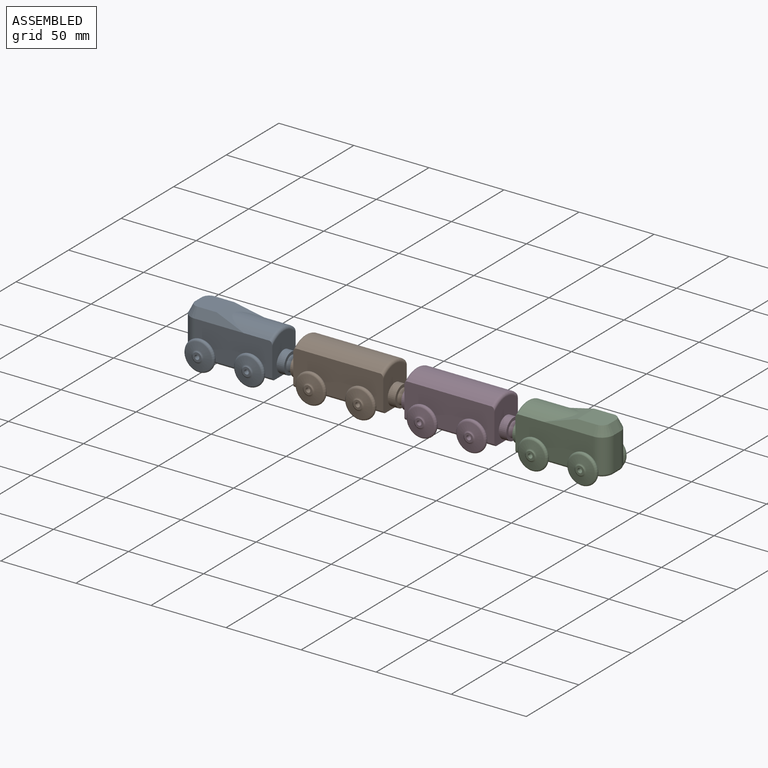
[diagram: assembled view]
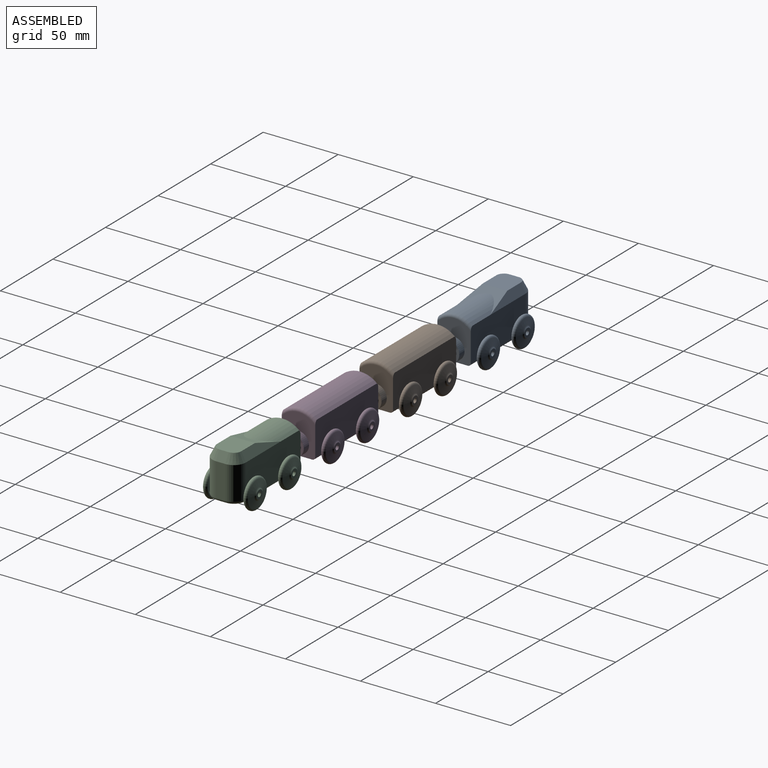
[diagram: assembled view, second angle]
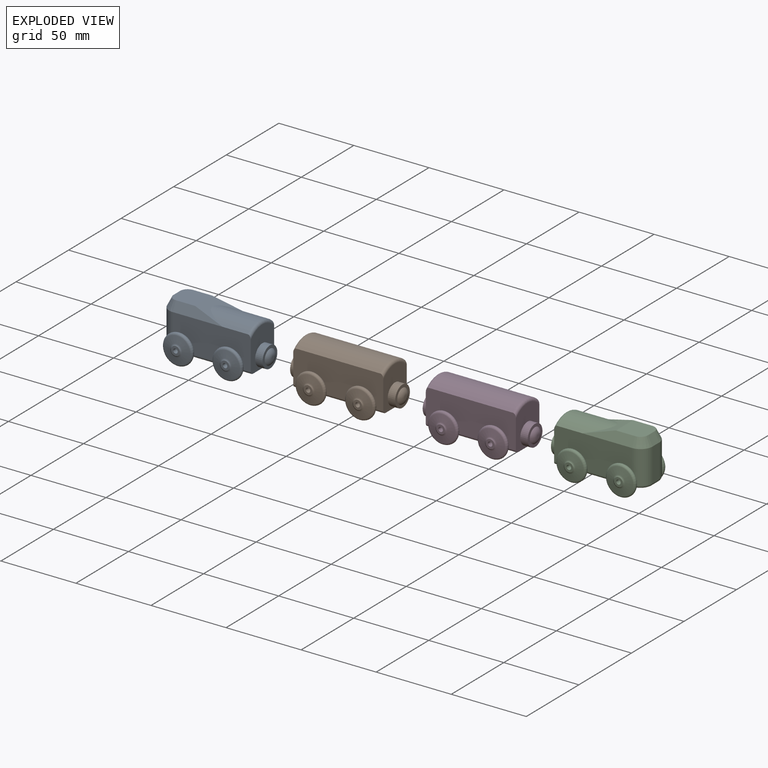
[diagram: exploded view]
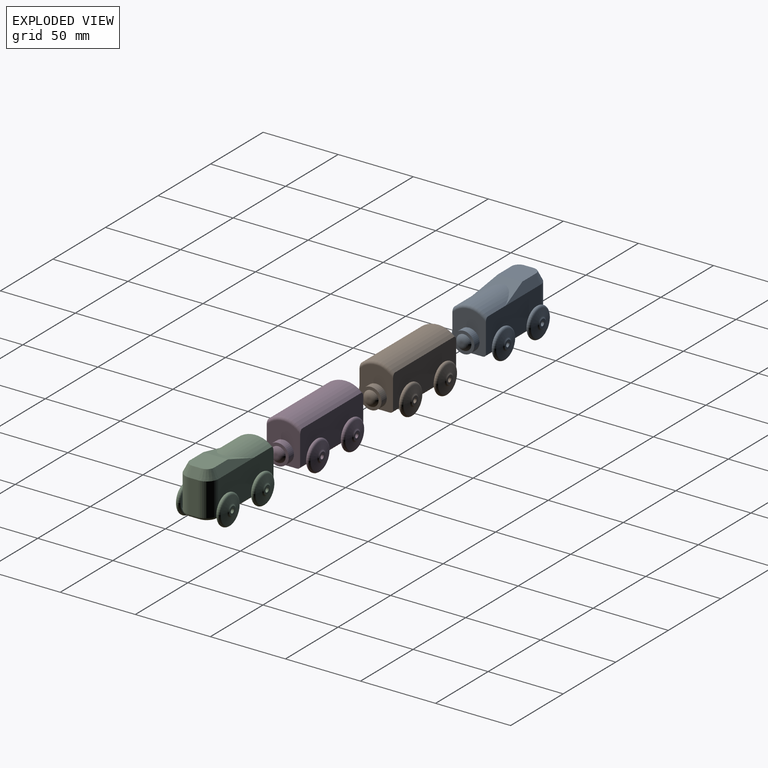
[diagram: exploded view, second angle]
ASSEMBLY  parts=4 mates=3
PART A: 69 faces, bbox 67.7x35.4x36.8 mm
  f0: plane 0.11x0.1mm, normal (1,0,0), area 0mm2, adj f1,f14,f18
  f1: cylinder r=16.75mm len=31.21mm, axis (-1,0,0), area 641.2mm2, adj f0,f3,f4,f9,f18,f68
  f2: plane 58x18.84mm, normal (0,0,-1), area 1048.3mm2, adj f5,f55,f56,f57,f58,f59,f60,f61
  f3: plane 52x22mm, normal (0,1,0), area 1092.5mm2, adj f1,f5,f11,f14,f42,f50,f63,f65
  f4: plane 52x22mm, normal (0,-1,0), area 1092.5mm2, adj f1,f5,f12,f13,f26,f34,f55,f57
  f5: plane 26.25x22.3mm, normal (1,0,0), area 394.9mm2, adj f2,f3,f4,f19,f55,f67,f68
  f6: plane 22x6.3mm, normal (-1,0,0), area 138.6mm2, adj f11,f12,f17,f61
  f7: cylinder r=1.6mm len=22.3mm, axis (0,-1,0), area 224.2mm2, adj f31,f39
  f8: cylinder r=1.6mm len=22.3mm, axis (0,-1,0), area 224.2mm2, adj f23,f47
  f9: plane 0.11x0.1mm, normal (1,0,0), area 0mm2, adj f1,f13,f18
  f10: plane 17.9x16.3mm, normal (0,0,1), area 281.1mm2, adj f13,f14,f15,f16,f17,f18
  f11: cylinder r=8mm len=22mm, axis (0,0,1), area 276.5mm2, adj f3,f6,f16,f62
  f12: cylinder r=8mm len=22mm, axis (0,0,-1), area 276.5mm2, adj f4,f6,f15,f60
  f13: plane 32.9x6mm, normal (0,-0.89,0.45), area 154.8mm2, adj f4,f9,f10,f15,f18
  f14: plane 32.9x6mm, normal (0,0.89,0.45), area 154.8mm2, adj f0,f3,f10,f16,f18
  f15: cone r=5mm half-angle=26.6deg, axis (0,0,-1), area 68.5mm2, adj f10,f12,f13,f17
  f16: cone r=5mm half-angle=26.6deg, axis (0,0,-1), area 68.5mm2, adj f10,f11,f14,f17
  f17: plane 6.3x6mm, normal (-0.89,0,0.45), area 42.3mm2, adj f6,f10,f15,f16
  f18: plane 22.2x20mm, normal (0.28,0,0.96), area 179.6mm2, adj f0,f1,f9,f10,f13,f14
  f19: cylinder r=7mm len=14mm, axis (-1,0,0), area 219.9mm2, adj f5,f20
  f20: plane 14x14mm, normal (1,0,0), area 75.4mm2, adj f19,f22
  f21: plane 2x2mm, normal (1,0,0), area 3.1mm2, adj f22
  f22: torus R=1mm, axis (-1,0,0), area 92mm2, adj f20,f21
  f23: plane 3.2x3.2mm, normal (0,1,0), area 1mm2, adj f8,f25
  f24: plane 6x6mm, normal (0,-1,0), area 21.2mm2, adj f25,f30
  f25: cylinder r=1.5mm len=5.2mm, axis (0,1,0), area 49mm2, adj f23,f24
  f26: cylinder r=3mm len=6mm, axis (0,1,0), area 43.4mm2, adj f4,f27,f58
  f27: plane 14x14mm, normal (0,1,0), area 125.7mm2, adj f26,f28
  f28: torus R=8.5mm, axis (0,1,0), area 377.4mm2, adj f27,f29
  f29: cone r=4.1mm half-angle=79.9deg, axis (0,1,0), area 191.2mm2, adj f28,f30
  f30: torus R=4.45mm, axis (0,1,0), area 28.2mm2, adj f24,f29
  f31: plane 3.2x3.2mm, normal (0,1,0), area 1mm2, adj f7,f33
  f32: plane 6x6mm, normal (0,-1,0), area 21.2mm2, adj f33,f38
  f33: cylinder r=1.5mm len=5.2mm, axis (0,1,0), area 49mm2, adj f31,f32
  f34: cylinder r=3mm len=6mm, axis (0,1,0), area 43.4mm2, adj f4,f35,f56
  f35: plane 14x14mm, normal (0,1,0), area 125.7mm2, adj f34,f36
  f36: torus R=8.5mm, axis (0,1,0), area 377.4mm2, adj f35,f37
  f37: cone r=4.1mm half-angle=79.9deg, axis (0,1,0), area 191.2mm2, adj f36,f38
  f38: torus R=4.45mm, axis (0,1,0), area 28.2mm2, adj f32,f37
  f39: plane 3.2x3.2mm, normal (0,-1,0), area 1mm2, adj f7,f41
  f40: plane 6x6mm, normal (0,1,0), area 21.2mm2, adj f41,f46
  f41: cylinder r=1.5mm len=5.2mm, axis (0,-1,0), area 49mm2, adj f39,f40
  f42: cylinder r=3mm len=6mm, axis (0,-1,0), area 43.4mm2, adj f3,f43,f66
  f43: plane 14x14mm, normal (0,-1,0), area 125.7mm2, adj f42,f44
  f44: torus R=8.5mm, axis (0,-1,0), area 377.4mm2, adj f43,f45
  f45: cone r=4.1mm half-angle=79.9deg, axis (0,-1,0), area 191.2mm2, adj f44,f46
  f46: torus R=4.45mm, axis (0,-1,0), area 28.2mm2, adj f40,f45
  f47: plane 3.2x3.2mm, normal (0,-1,0), area 1mm2, adj f8,f49
  f48: plane 6x6mm, normal (0,1,0), area 21.2mm2, adj f49,f54
  f49: cylinder r=1.5mm len=5.2mm, axis (0,-1,0), area 49mm2, adj f47,f48
  f50: cylinder r=3mm len=6mm, axis (0,-1,0), area 43.4mm2, adj f3,f51,f64
  f51: plane 14x14mm, normal (0,-1,0), area 125.7mm2, adj f50,f52
  f52: torus R=8.5mm, axis (0,-1,0), area 377.4mm2, adj f51,f53
  f53: cone r=4.1mm half-angle=79.9deg, axis (0,-1,0), area 191.2mm2, adj f52,f54
  f54: torus R=4.45mm, axis (0,-1,0), area 28.2mm2, adj f48,f53
  f55: cylinder r=2mm len=11.26mm, axis (-1,0,0), area 35.4mm2, adj f2,f4,f5,f56
  f56: bspline ~4.47x2mm, area 10.9mm2, adj f2,f34,f55,f57
  f57: cylinder r=2mm len=28.53mm, axis (-1,0,0), area 89.6mm2, adj f2,f4,f56,f58
  f58: bspline ~4.47x2mm, area 10.9mm2, adj f2,f26,f57,f59
  f59: cylinder r=2mm len=3.26mm, axis (-1,0,0), area 10.3mm2, adj f2,f4,f58,f60
  f60: torus R=6mm, axis (0,0,-1), area 35.9mm2, adj f2,f12,f59,f61
  f61: cylinder r=2mm len=6.3mm, axis (0,1,0), area 19.8mm2, adj f2,f6,f60,f62
  f62: torus R=6mm, axis (0,0,-1), area 35.9mm2, adj f2,f11,f61,f63
  f63: cylinder r=2mm len=3.26mm, axis (1,0,0), area 10.3mm2, adj f2,f3,f62,f64
  f64: bspline ~4.47x2mm, area 10.9mm2, adj f2,f50,f63,f65
  f65: cylinder r=2mm len=28.53mm, axis (1,0,0), area 89.6mm2, adj f2,f3,f64,f66
  f66: bspline ~4.47x2mm, area 10.9mm2, adj f2,f42,f65,f67
  f67: cylinder r=2mm len=11.26mm, axis (1,0,0), area 35.4mm2, adj f2,f3,f5,f66
  f68: torus R=14.75mm, axis (1,0,0), area 77.6mm2, adj f1,f3,f4,f5
PART B: 60 faces, bbox 74x35.4x36.5 mm
  f0: plane 60x18.84mm, normal (0,0,-1), area 1100.4mm2, adj f4,f5,f48,f49,f50,f51,f52,f53
  f1: plane 60x22mm, normal (0,1,0), area 1267.3mm2, adj f2,f4,f5,f27,f43,f48,f50,f52
  f2: cylinder r=16.75mm len=56mm, axis (-1,0,0), area 1366.4mm2, adj f1,f3,f58,f59
  f3: plane 60x22mm, normal (0,-1,0), area 1267.3mm2, adj f2,f4,f5,f19,f35,f53,f55,f57
  f4: plane 26.25x22.3mm, normal (1,0,0), area 394.9mm2, adj f0,f1,f3,f8,f52,f57,f59
  f5: plane 26.25x22.3mm, normal (-1,0,0), area 394.9mm2, adj f0,f1,f3,f12,f48,f53,f58
  f6: cylinder r=1.6mm len=22.3mm, axis (0,-1,0), area 224.2mm2, adj f32,f40
  f7: cylinder r=1.6mm len=22.3mm, axis (0,-1,0), area 224.2mm2, adj f16,f24
  f8: cylinder r=7mm len=14mm, axis (-1,0,0), area 219.9mm2, adj f4,f9
  f9: plane 14x14mm, normal (1,0,0), area 75.4mm2, adj f8,f11
  f10: plane 2x2mm, normal (1,0,0), area 3.1mm2, adj f11
  f11: torus R=1mm, axis (-1,0,0), area 92mm2, adj f9,f10
  f12: cylinder r=7mm len=14mm, axis (1,0,0), area 219.9mm2, adj f5,f13
  f13: plane 14x14mm, normal (-1,0,0), area 75.4mm2, adj f12,f15
  f14: plane 2x2mm, normal (-1,0,0), area 3.1mm2, adj f15
  f15: torus R=1mm, axis (1,0,0), area 92mm2, adj f13,f14
  f16: plane 3.2x3.2mm, normal (0,1,0), area 1mm2, adj f7,f18
  f17: plane 6x6mm, normal (0,-1,0), area 21.2mm2, adj f18,f23
  f18: cylinder r=1.5mm len=5.2mm, axis (0,1,0), area 49mm2, adj f16,f17
  f19: cylinder r=3mm len=6mm, axis (0,1,0), area 43.4mm2, adj f3,f20,f54
  f20: plane 14x14mm, normal (0,1,0), area 125.7mm2, adj f19,f21
  f21: torus R=8.5mm, axis (0,1,0), area 377.4mm2, adj f20,f22
  f22: cone r=4.1mm half-angle=79.9deg, axis (0,1,0), area 191.2mm2, adj f21,f23
  f23: torus R=4.45mm, axis (0,1,0), area 28.2mm2, adj f17,f22
  f24: plane 3.2x3.2mm, normal (0,-1,0), area 1mm2, adj f7,f26
  f25: plane 6x6mm, normal (0,1,0), area 21.2mm2, adj f26,f31
  f26: cylinder r=1.5mm len=5.2mm, axis (0,-1,0), area 49mm2, adj f24,f25
  f27: cylinder r=3mm len=6mm, axis (0,-1,0), area 43.4mm2, adj f1,f28,f49
  f28: plane 14x14mm, normal (0,-1,0), area 125.7mm2, adj f27,f29
  f29: torus R=8.5mm, axis (0,-1,0), area 377.4mm2, adj f28,f30
  f30: cone r=4.1mm half-angle=79.9deg, axis (0,-1,0), area 191.2mm2, adj f29,f31
  f31: torus R=4.45mm, axis (0,-1,0), area 28.2mm2, adj f25,f30
  f32: plane 3.2x3.2mm, normal (0,1,0), area 1mm2, adj f6,f34
  f33: plane 6x6mm, normal (0,-1,0), area 21.2mm2, adj f34,f39
  f34: cylinder r=1.5mm len=5.2mm, axis (0,1,0), area 49mm2, adj f32,f33
  f35: cylinder r=3mm len=6mm, axis (0,1,0), area 43.4mm2, adj f3,f36,f56
  f36: plane 14x14mm, normal (0,1,0), area 125.7mm2, adj f35,f37
  f37: torus R=8.5mm, axis (0,1,0), area 377.4mm2, adj f36,f38
  f38: cone r=4.1mm half-angle=79.9deg, axis (0,1,0), area 191.2mm2, adj f37,f39
  f39: torus R=4.45mm, axis (0,1,0), area 28.2mm2, adj f33,f38
  f40: plane 3.2x3.2mm, normal (0,-1,0), area 1mm2, adj f6,f42
  f41: plane 6x6mm, normal (0,1,0), area 21.2mm2, adj f42,f47
  f42: cylinder r=1.5mm len=5.2mm, axis (0,-1,0), area 49mm2, adj f40,f41
  f43: cylinder r=3mm len=6mm, axis (0,-1,0), area 43.4mm2, adj f1,f44,f51
  f44: plane 14x14mm, normal (0,-1,0), area 125.7mm2, adj f43,f45
  f45: torus R=8.5mm, axis (0,-1,0), area 377.4mm2, adj f44,f46
  f46: cone r=4.1mm half-angle=79.9deg, axis (0,-1,0), area 191.2mm2, adj f45,f47
  f47: torus R=4.45mm, axis (0,-1,0), area 28.2mm2, adj f41,f46
  f48: cylinder r=2mm len=11.26mm, axis (1,0,0), area 35.4mm2, adj f0,f1,f5,f49
  f49: bspline ~4.47x2mm, area 10.9mm2, adj f0,f27,f48,f50
  f50: cylinder r=2mm len=28.53mm, axis (1,0,0), area 89.6mm2, adj f0,f1,f49,f51
  f51: bspline ~4.47x2mm, area 10.9mm2, adj f0,f43,f50,f52
  f52: cylinder r=2mm len=11.26mm, axis (1,0,0), area 35.4mm2, adj f0,f1,f4,f51
  f53: cylinder r=2mm len=11.26mm, axis (-1,0,0), area 35.4mm2, adj f0,f3,f5,f54
  f54: bspline ~4.47x2mm, area 10.9mm2, adj f0,f19,f53,f55
  f55: cylinder r=2mm len=28.53mm, axis (-1,0,0), area 89.6mm2, adj f0,f3,f54,f56
  f56: bspline ~4.47x2mm, area 10.9mm2, adj f0,f35,f55,f57
  f57: cylinder r=2mm len=11.26mm, axis (-1,0,0), area 35.4mm2, adj f0,f3,f4,f56
  f58: torus R=14.75mm, axis (1,0,0), area 77.6mm2, adj f1,f2,f3,f5
  f59: torus R=14.75mm, axis (1,0,0), area 77.6mm2, adj f1,f2,f3,f4
PART C: same geometry as A
PART D: same geometry as B
PLACE A t=(20.95,17.94,21.88)mm
PLACE B t=(94.95,17.94,21.88)mm
PLACE C rot(axis=(0,0,1),180deg) t=(242.95,17.94,21.88)mm
PLACE D t=(168.95,17.94,21.88)mm
MATE fastened B.f8 <-> A.f19  axis (-1,0,0) through (57.95,17.94,25.88)mm
MATE fastened D.f8 <-> C.f19  axis (1,0,0) through (205.95,17.94,25.88)mm
MATE fastened B.f8 <-> D.f8  axis (1,0,0) through (131.95,17.94,25.88)mm
